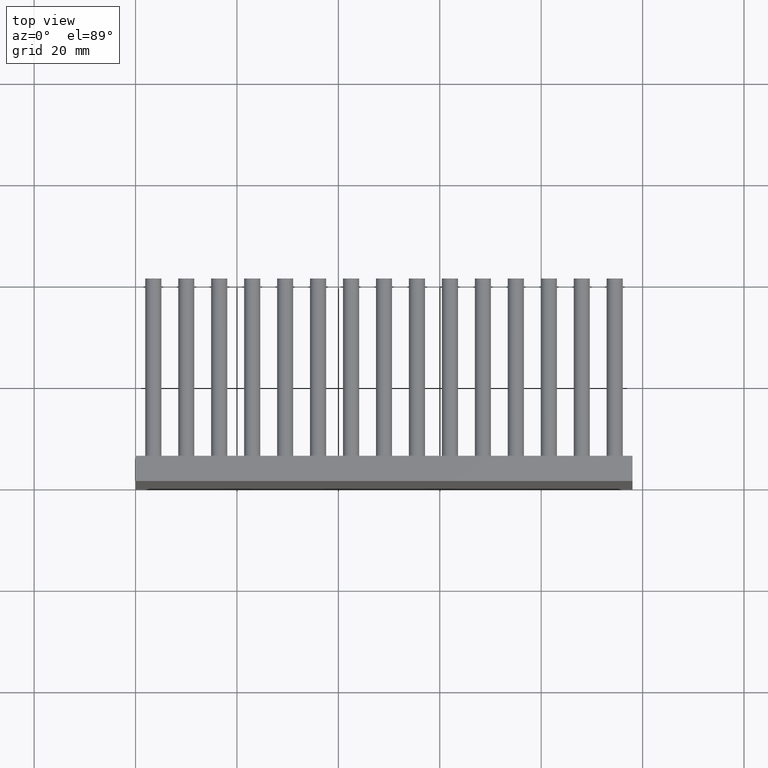
[diagram: clean part render]
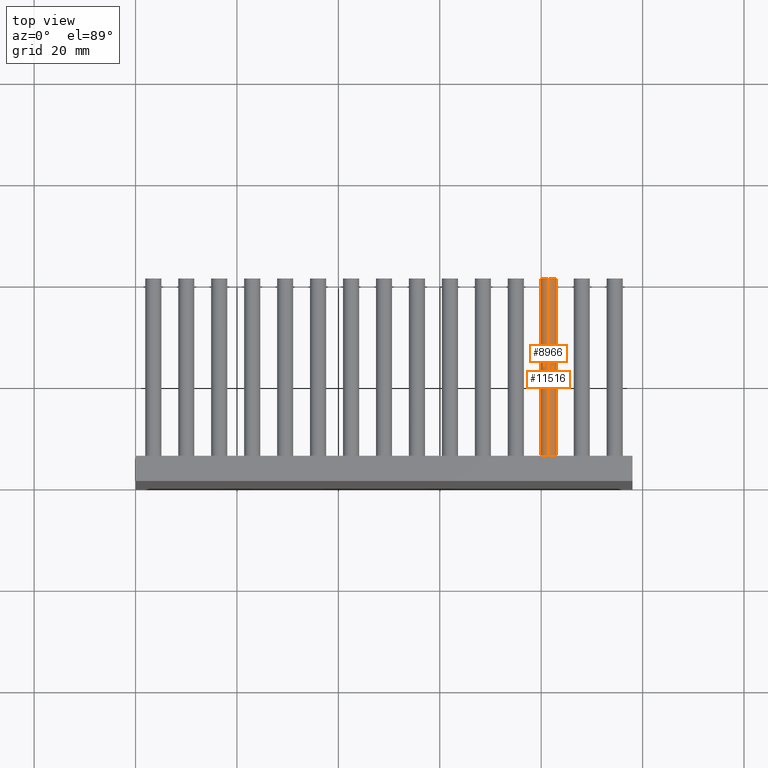
[diagram: same view with one multi-face feature highlighted, each face labeled with its STEP entity id]
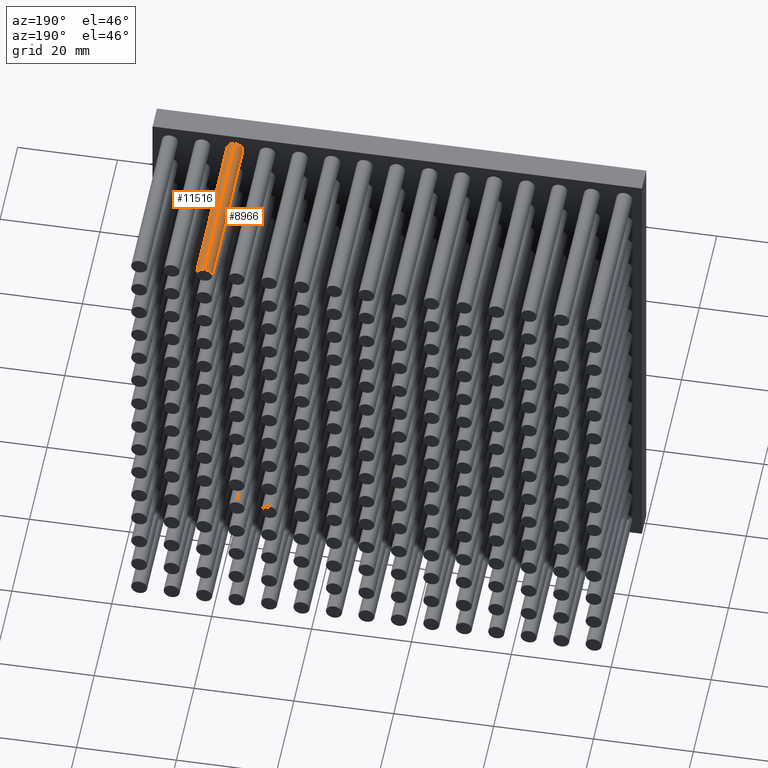
[diagram: same view with one multi-face feature highlighted, each face labeled with its STEP entity id]
A machine part, top view. The highlighted faces form ONE feature: a constant-radius fillet chain: 2 tangent blend faces with common blend radius 1.6 mm. The faces share edges in the B-rep.
A second angle (auxiliary view) of the same feature is appended — it is thin or edge-on in the first view.
Their STEP definitions:
[1] entity #8966 (Cylinder):
#235 = VERTEX_POINT ( 'NONE', #2773 ) ;
#2191 = FACE_OUTER_BOUND ( 'NONE', #15386, .T. ) ;
#2282 = DIRECTION ( 'NONE',  ( 0.0000000000000000000, 1.000000000000000000, 0.0000000000000000000 ) ) ;
#2773 = CARTESIAN_POINT ( 'NONE',  ( 81.50000000000000000, 5.000000000000000000, 96.09999999999999432 ) ) ;
#3303 = EDGE_CURVE ( 'NONE', #13900, #15909, #17985, .T. ) ;
#3462 = CARTESIAN_POINT ( 'NONE',  ( 81.50000000000000000, 40.00000000000000000, 96.09999999999999432 ) ) ;
#4214 = LINE ( 'NONE', #9839, #16239 ) ;
#4938 = DIRECTION ( 'NONE',  ( 0.0000000000000000000, 0.0000000000000000000, 1.000000000000000000 ) ) ;
#5023 = AXIS2_PLACEMENT_3D ( 'NONE', #7785, #10653, #5393 ) ;
#5393 = DIRECTION ( 'NONE',  ( 0.0000000000000000000, 0.0000000000000000000, -1.000000000000000000 ) ) ;
#5517 = CARTESIAN_POINT ( 'NONE',  ( 81.50000000000000000, 40.00000000000000000, 96.09999999999999432 ) ) ;
#5836 = EDGE_CURVE ( 'NONE', #13900, #6751, #4214, .T. ) ;
#6100 = DIRECTION ( 'NONE',  ( -0.0000000000000000000, -1.000000000000000000, -0.0000000000000000000 ) ) ;
#6275 = ORIENTED_EDGE ( 'NONE', *, *, #5836, .T. ) ;
#6417 = ORIENTED_EDGE ( 'NONE', *, *, #17338, .T. ) ;
#6533 = ORIENTED_EDGE ( 'NONE', *, *, #18068, .F. ) ;
#6716 = LINE ( 'NONE', #5517, #9979 ) ;
#6751 = VERTEX_POINT ( 'NONE', #14556 ) ;
#7785 = CARTESIAN_POINT ( 'NONE',  ( 81.50000000000000000, 40.00000000000000000, 94.49999999999998579 ) ) ;
#7806 = DIRECTION ( 'NONE',  ( 0.0000000000000000000, 0.0000000000000000000, 1.000000000000000000 ) ) ;
#8175 = AXIS2_PLACEMENT_3D ( 'NONE', #14835, #17943, #7806 ) ;
#8966 = ADVANCED_FACE ( 'NONE', ( #2191 ), #13696, .T. ) ;
#9839 = CARTESIAN_POINT ( 'NONE',  ( 81.50000000000000000, 40.00000000000000000, 92.89999999999997726 ) ) ;
#9979 = VECTOR ( 'NONE', #17801, 1000.000000000000000 ) ;
#10653 = DIRECTION ( 'NONE',  ( -0.0000000000000000000, -1.000000000000000000, -0.0000000000000000000 ) ) ;
#11943 = CARTESIAN_POINT ( 'NONE',  ( 81.50000000000000000, 40.00000000000000000, 94.49999999999998579 ) ) ;
#13471 = CARTESIAN_POINT ( 'NONE',  ( 81.50000000000000000, 40.00000000000000000, 92.89999999999997726 ) ) ;
#13696 = CYLINDRICAL_SURFACE ( 'NONE', #5023, 1.600000000000004086 ) ;
#13900 = VERTEX_POINT ( 'NONE', #13471 ) ;
#14556 = CARTESIAN_POINT ( 'NONE',  ( 81.50000000000000000, 5.000000000000000000, 92.89999999999997726 ) ) ;
#14835 = CARTESIAN_POINT ( 'NONE',  ( 81.50000000000000000, 5.000000000000000000, 94.49999999999998579 ) ) ;
#15343 = AXIS2_PLACEMENT_3D ( 'NONE', #11943, #2282, #4938 ) ;
#15386 = EDGE_LOOP ( 'NONE', ( #6533, #17795, #6275, #6417 ) ) ;
#15909 = VERTEX_POINT ( 'NONE', #3462 ) ;
#16239 = VECTOR ( 'NONE', #6100, 1000.000000000000000 ) ;
#16415 = CIRCLE ( 'NONE', #8175, 1.600000000000004086 ) ;
#17338 = EDGE_CURVE ( 'NONE', #6751, #235, #16415, .T. ) ;
#17795 = ORIENTED_EDGE ( 'NONE', *, *, #3303, .F. ) ;
#17801 = DIRECTION ( 'NONE',  ( -0.0000000000000000000, -1.000000000000000000, -0.0000000000000000000 ) ) ;
#17943 = DIRECTION ( 'NONE',  ( 0.0000000000000000000, 1.000000000000000000, 0.0000000000000000000 ) ) ;
#17985 = CIRCLE ( 'NONE', #15343, 1.600000000000004086 ) ;
#18068 = EDGE_CURVE ( 'NONE', #15909, #235, #6716, .T. ) ;
[2] entity #11516 (Cylinder):
#235 = VERTEX_POINT ( 'NONE', #2773 ) ;
#526 = DIRECTION ( 'NONE',  ( -0.0000000000000000000, -1.000000000000000000, -0.0000000000000000000 ) ) ;
#1585 = CIRCLE ( 'NONE', #6274, 1.600000000000004086 ) ;
#2773 = CARTESIAN_POINT ( 'NONE',  ( 81.50000000000000000, 5.000000000000000000, 96.09999999999999432 ) ) ;
#3272 = ORIENTED_EDGE ( 'NONE', *, *, #16487, .T. ) ;
#3462 = CARTESIAN_POINT ( 'NONE',  ( 81.50000000000000000, 40.00000000000000000, 96.09999999999999432 ) ) ;
#3686 = EDGE_LOOP ( 'NONE', ( #17765, #6689, #3272, #7074 ) ) ;
#4067 = CARTESIAN_POINT ( 'NONE',  ( 81.50000000000000000, 5.000000000000000000, 94.49999999999998579 ) ) ;
#4214 = LINE ( 'NONE', #9839, #16239 ) ;
#4326 = EDGE_CURVE ( 'NONE', #15909, #13900, #14178, .T. ) ;
#5517 = CARTESIAN_POINT ( 'NONE',  ( 81.50000000000000000, 40.00000000000000000, 96.09999999999999432 ) ) ;
#5628 = AXIS2_PLACEMENT_3D ( 'NONE', #13702, #7968, #6678 ) ;
#5836 = EDGE_CURVE ( 'NONE', #13900, #6751, #4214, .T. ) ;
#6100 = DIRECTION ( 'NONE',  ( -0.0000000000000000000, -1.000000000000000000, -0.0000000000000000000 ) ) ;
#6274 = AXIS2_PLACEMENT_3D ( 'NONE', #4067, #9337, #8131 ) ;
#6678 = DIRECTION ( 'NONE',  ( 0.0000000000000000000, 0.0000000000000000000, 1.000000000000000000 ) ) ;
#6689 = ORIENTED_EDGE ( 'NONE', *, *, #18068, .T. ) ;
#6716 = LINE ( 'NONE', #5517, #9979 ) ;
#6751 = VERTEX_POINT ( 'NONE', #14556 ) ;
#7074 = ORIENTED_EDGE ( 'NONE', *, *, #5836, .F. ) ;
#7314 = DIRECTION ( 'NONE',  ( 0.0000000000000000000, 0.0000000000000000000, -1.000000000000000000 ) ) ;
#7968 = DIRECTION ( 'NONE',  ( 0.0000000000000000000, 1.000000000000000000, 0.0000000000000000000 ) ) ;
#8131 = DIRECTION ( 'NONE',  ( 0.0000000000000000000, 0.0000000000000000000, 1.000000000000000000 ) ) ;
#9337 = DIRECTION ( 'NONE',  ( 0.0000000000000000000, 1.000000000000000000, 0.0000000000000000000 ) ) ;
#9684 = FACE_OUTER_BOUND ( 'NONE', #3686, .T. ) ;
#9839 = CARTESIAN_POINT ( 'NONE',  ( 81.50000000000000000, 40.00000000000000000, 92.89999999999997726 ) ) ;
#9979 = VECTOR ( 'NONE', #17801, 1000.000000000000000 ) ;
#10086 = AXIS2_PLACEMENT_3D ( 'NONE', #10487, #526, #7314 ) ;
#10487 = CARTESIAN_POINT ( 'NONE',  ( 81.50000000000000000, 40.00000000000000000, 94.49999999999998579 ) ) ;
#11516 = ADVANCED_FACE ( 'NONE', ( #9684 ), #15304, .T. ) ;
#13471 = CARTESIAN_POINT ( 'NONE',  ( 81.50000000000000000, 40.00000000000000000, 92.89999999999997726 ) ) ;
#13702 = CARTESIAN_POINT ( 'NONE',  ( 81.50000000000000000, 40.00000000000000000, 94.49999999999998579 ) ) ;
#13900 = VERTEX_POINT ( 'NONE', #13471 ) ;
#14178 = CIRCLE ( 'NONE', #5628, 1.600000000000004086 ) ;
#14556 = CARTESIAN_POINT ( 'NONE',  ( 81.50000000000000000, 5.000000000000000000, 92.89999999999997726 ) ) ;
#15304 = CYLINDRICAL_SURFACE ( 'NONE', #10086, 1.600000000000004086 ) ;
#15909 = VERTEX_POINT ( 'NONE', #3462 ) ;
#16239 = VECTOR ( 'NONE', #6100, 1000.000000000000000 ) ;
#16487 = EDGE_CURVE ( 'NONE', #235, #6751, #1585, .T. ) ;
#17765 = ORIENTED_EDGE ( 'NONE', *, *, #4326, .F. ) ;
#17801 = DIRECTION ( 'NONE',  ( -0.0000000000000000000, -1.000000000000000000, -0.0000000000000000000 ) ) ;
#18068 = EDGE_CURVE ( 'NONE', #15909, #235, #6716, .T. ) ;